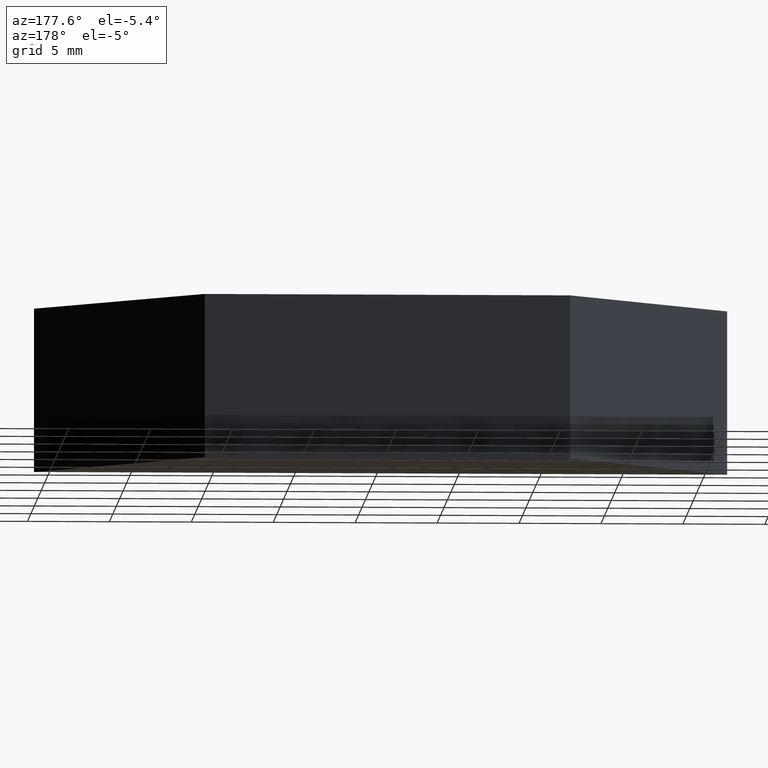
[diagram: clean part render]
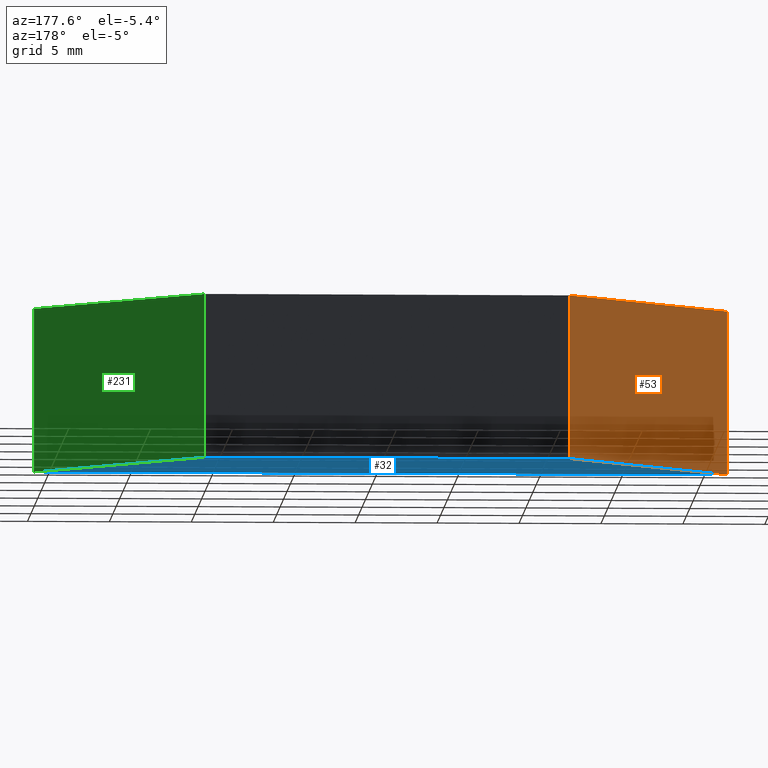
[diagram: same view with three faces highlighted in distinct colors, each labeled with its STEP entity id]
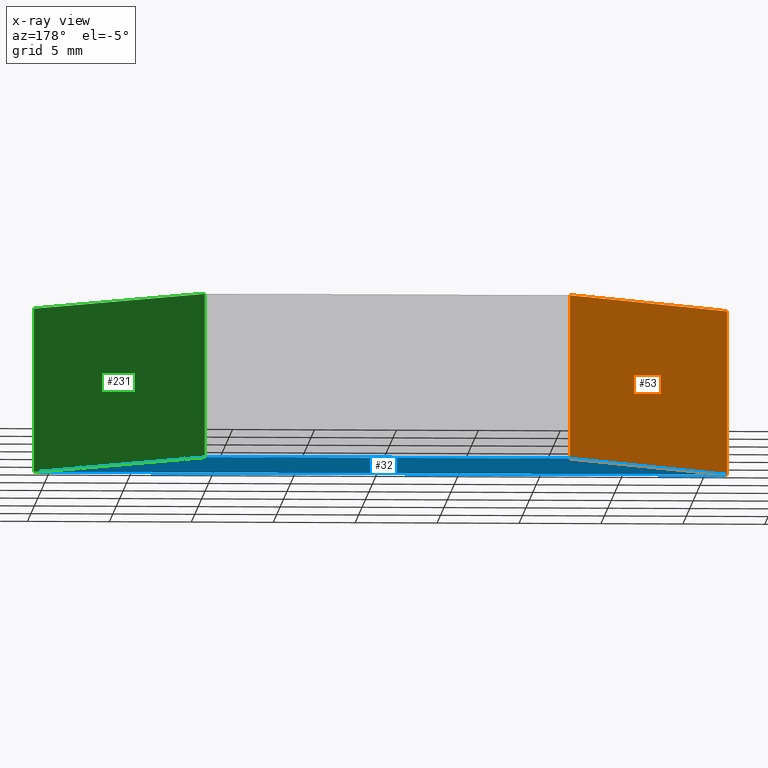
[diagram: x-ray of the same camera — body ghosted, the three highlighted faces saturated]
A machine part, auxiliary view with three faces highlighted in distinct colors.
The next image is the same camera in x-ray (body ghosted, the three faces saturated) — at least one of them is partly hidden behind the body in this view.
Their STEP definitions:

[orange] entity #53 — the highlighted planar face has unit normal (0.7071, -0.7071, 0).
#2 = CARTESIAN_POINT ( 'NONE',  ( 38.34353380175870300, 49.92210381883444400, 0.0000000000000000000 ) ) ;
#11 = VERTEX_POINT ( 'NONE', #163 ) ;
#17 = VERTEX_POINT ( 'NONE', #260 ) ;
#19 = PLANE ( 'NONE',  #215 ) ;
#20 = LINE ( 'NONE', #58, #272 ) ;
#39 = CARTESIAN_POINT ( 'NONE',  ( 38.34353380175870300, 49.92210381883444400, 10.00000000000000000 ) ) ;
#53 = ADVANCED_FACE ( 'NONE', ( #154 ), #19, .F. ) ;
#56 = ORIENTED_EDGE ( 'NONE', *, *, #73, .T. ) ;
#58 = CARTESIAN_POINT ( 'NONE',  ( 38.34353380175870300, 49.92210381883444400, 10.00000000000000000 ) ) ;
#60 = LINE ( 'NONE', #2, #294 ) ;
#61 = ORIENTED_EDGE ( 'NONE', *, *, #299, .T. ) ;
#73 = EDGE_CURVE ( 'NONE', #11, #302, #201, .T. ) ;
#80 = EDGE_CURVE ( 'NONE', #17, #99, #20, .T. ) ;
#82 = DIRECTION ( 'NONE',  ( -0.0000000000000000000, -0.0000000000000000000, -1.000000000000000000 ) ) ;
#99 = VERTEX_POINT ( 'NONE', #217 ) ;
#100 = EDGE_CURVE ( 'NONE', #11, #17, #265, .T. ) ;
#115 = ORIENTED_EDGE ( 'NONE', *, *, #100, .F. ) ;
#122 = DIRECTION ( 'NONE',  ( -0.7071067811865470200, -0.7071067811865480200, -0.0000000000000000000 ) ) ;
#128 = VECTOR ( 'NONE', #261, 1000.000000000000000 ) ;
#135 = DIRECTION ( 'NONE',  ( 0.7071067811865480200, -0.7071067811865470200, 0.0000000000000000000 ) ) ;
#146 = EDGE_LOOP ( 'NONE', ( #61, #257, #115, #56 ) ) ;
#154 = FACE_OUTER_BOUND ( 'NONE', #146, .T. ) ;
#159 = CARTESIAN_POINT ( 'NONE',  ( 48.34353380175868900, 59.92210381883445100, 10.00000000000000000 ) ) ;
#163 = CARTESIAN_POINT ( 'NONE',  ( 48.34353380175868900, 59.92210381883445100, 10.00000000000000000 ) ) ;
#185 = CARTESIAN_POINT ( 'NONE',  ( 38.34353380175870300, 49.92210381883444400, 10.00000000000000000 ) ) ;
#187 = DIRECTION ( 'NONE',  ( -0.0000000000000000000, -0.0000000000000000000, -1.000000000000000000 ) ) ;
#189 = CARTESIAN_POINT ( 'NONE',  ( 48.34353380175868900, 59.92210381883445100, 0.0000000000000000000 ) ) ;
#201 = LINE ( 'NONE', #159, #269 ) ;
#215 = AXIS2_PLACEMENT_3D ( 'NONE', #185, #135, #308 ) ;
#217 = CARTESIAN_POINT ( 'NONE',  ( 38.34353380175870300, 49.92210381883444400, 0.0000000000000000000 ) ) ;
#257 = ORIENTED_EDGE ( 'NONE', *, *, #80, .F. ) ;
#260 = CARTESIAN_POINT ( 'NONE',  ( 38.34353380175870300, 49.92210381883444400, 10.00000000000000000 ) ) ;
#261 = DIRECTION ( 'NONE',  ( -0.7071067811865470200, -0.7071067811865480200, -0.0000000000000000000 ) ) ;
#265 = LINE ( 'NONE', #39, #128 ) ;
#269 = VECTOR ( 'NONE', #187, 1000.000000000000000 ) ;
#272 = VECTOR ( 'NONE', #82, 1000.000000000000000 ) ;
#294 = VECTOR ( 'NONE', #122, 1000.000000000000000 ) ;
#299 = EDGE_CURVE ( 'NONE', #302, #99, #60, .T. ) ;
#302 = VERTEX_POINT ( 'NONE', #189 ) ;
#308 = DIRECTION ( 'NONE',  ( 0.7071067811865470200, 0.7071067811865480200, 0.0000000000000000000 ) ) ;

[blue] entity #32 — the highlighted planar face has unit normal (0, -0, 1).
#2 = CARTESIAN_POINT ( 'NONE',  ( 38.34353380175870300, 49.92210381883444400, 0.0000000000000000000 ) ) ;
#14 = DIRECTION ( 'NONE',  ( 1.000000000000000000, 0.0000000000000000000, -0.0000000000000000000 ) ) ;
#30 = FACE_OUTER_BOUND ( 'NONE', #284, .T. ) ;
#32 = ADVANCED_FACE ( 'NONE', ( #30 ), #311, .F. ) ;
#35 = VECTOR ( 'NONE', #289, 1000.000000000000000 ) ;
#36 = ORIENTED_EDGE ( 'NONE', *, *, #59, .F. ) ;
#59 = EDGE_CURVE ( 'NONE', #142, #295, #218, .T. ) ;
#60 = LINE ( 'NONE', #2, #294 ) ;
#72 = CARTESIAN_POINT ( 'NONE',  ( 38.34353380175870300, 49.92210381883444400, 0.0000000000000000000 ) ) ;
#81 = VECTOR ( 'NONE', #250, 1000.000000000000000 ) ;
#83 = CARTESIAN_POINT ( 'NONE',  ( 0.0000000000000000000, 0.0000000000000000000, 0.0000000000000000000 ) ) ;
#86 = CARTESIAN_POINT ( 'NONE',  ( 70.64353380175859300, 59.92210381883445100, 0.0000000000000000000 ) ) ;
#95 = CARTESIAN_POINT ( 'NONE',  ( 80.64353380175877800, 49.92210381883444400, 0.0000000000000000000 ) ) ;
#99 = VERTEX_POINT ( 'NONE', #217 ) ;
#102 = LINE ( 'NONE', #72, #81 ) ;
#117 = CARTESIAN_POINT ( 'NONE',  ( 80.64353380175877800, 49.92210381883444400, 0.0000000000000000000 ) ) ;
#122 = DIRECTION ( 'NONE',  ( -0.7071067811865470200, -0.7071067811865480200, -0.0000000000000000000 ) ) ;
#142 = VERTEX_POINT ( 'NONE', #95 ) ;
#150 = VECTOR ( 'NONE', #161, 1000.000000000000000 ) ;
#153 = LINE ( 'NONE', #170, #35 ) ;
#161 = DIRECTION ( 'NONE',  ( -0.7071067811865536800, 0.7071067811865414700, 0.0000000000000000000 ) ) ;
#162 = ORIENTED_EDGE ( 'NONE', *, *, #281, .F. ) ;
#170 = CARTESIAN_POINT ( 'NONE',  ( 48.34353380175868900, 59.92210381883445100, 0.0000000000000000000 ) ) ;
#184 = ORIENTED_EDGE ( 'NONE', *, *, #299, .F. ) ;
#189 = CARTESIAN_POINT ( 'NONE',  ( 48.34353380175868900, 59.92210381883445100, 0.0000000000000000000 ) ) ;
#197 = EDGE_CURVE ( 'NONE', #99, #142, #102, .T. ) ;
#217 = CARTESIAN_POINT ( 'NONE',  ( 38.34353380175870300, 49.92210381883444400, 0.0000000000000000000 ) ) ;
#218 = LINE ( 'NONE', #117, #150 ) ;
#234 = ORIENTED_EDGE ( 'NONE', *, *, #197, .F. ) ;
#250 = DIRECTION ( 'NONE',  ( 1.000000000000000000, 0.0000000000000000000, 0.0000000000000000000 ) ) ;
#252 = AXIS2_PLACEMENT_3D ( 'NONE', #83, #307, #14 ) ;
#281 = EDGE_CURVE ( 'NONE', #295, #302, #153, .T. ) ;
#284 = EDGE_LOOP ( 'NONE', ( #184, #162, #36, #234 ) ) ;
#289 = DIRECTION ( 'NONE',  ( -1.000000000000000000, -0.0000000000000000000, -0.0000000000000000000 ) ) ;
#294 = VECTOR ( 'NONE', #122, 1000.000000000000000 ) ;
#295 = VERTEX_POINT ( 'NONE', #86 ) ;
#299 = EDGE_CURVE ( 'NONE', #302, #99, #60, .T. ) ;
#302 = VERTEX_POINT ( 'NONE', #189 ) ;
#307 = DIRECTION ( 'NONE',  ( 0.0000000000000000000, -0.0000000000000000000, 1.000000000000000000 ) ) ;
#311 = PLANE ( 'NONE',  #252 ) ;

[green] entity #231 — the highlighted planar face has unit normal (-0.7071, -0.7071, 0).
#5 = EDGE_LOOP ( 'NONE', ( #205, #259, #79, #50 ) ) ;
#16 = CARTESIAN_POINT ( 'NONE',  ( 70.64353380175859300, 59.92210381883445100, 10.00000000000000000 ) ) ;
#18 = DIRECTION ( 'NONE',  ( -0.0000000000000000000, -0.0000000000000000000, -1.000000000000000000 ) ) ;
#27 = DIRECTION ( 'NONE',  ( -0.7071067811865414700, -0.7071067811865536800, 0.0000000000000000000 ) ) ;
#48 = CARTESIAN_POINT ( 'NONE',  ( 80.64353380175877800, 49.92210381883444400, 10.00000000000000000 ) ) ;
#50 = ORIENTED_EDGE ( 'NONE', *, *, #238, .T. ) ;
#52 = VERTEX_POINT ( 'NONE', #16 ) ;
#59 = EDGE_CURVE ( 'NONE', #142, #295, #218, .T. ) ;
#67 = CARTESIAN_POINT ( 'NONE',  ( 80.64353380175877800, 49.92210381883444400, 10.00000000000000000 ) ) ;
#74 = VECTOR ( 'NONE', #18, 1000.000000000000000 ) ;
#78 = LINE ( 'NONE', #116, #173 ) ;
#79 = ORIENTED_EDGE ( 'NONE', *, *, #267, .F. ) ;
#84 = EDGE_CURVE ( 'NONE', #52, #295, #208, .T. ) ;
#86 = CARTESIAN_POINT ( 'NONE',  ( 70.64353380175859300, 59.92210381883445100, 0.0000000000000000000 ) ) ;
#95 = CARTESIAN_POINT ( 'NONE',  ( 80.64353380175877800, 49.92210381883444400, 0.0000000000000000000 ) ) ;
#98 = VECTOR ( 'NONE', #144, 1000.000000000000000 ) ;
#116 = CARTESIAN_POINT ( 'NONE',  ( 80.64353380175877800, 49.92210381883444400, 10.00000000000000000 ) ) ;
#117 = CARTESIAN_POINT ( 'NONE',  ( 80.64353380175877800, 49.92210381883444400, 0.0000000000000000000 ) ) ;
#132 = VERTEX_POINT ( 'NONE', #48 ) ;
#142 = VERTEX_POINT ( 'NONE', #95 ) ;
#144 = DIRECTION ( 'NONE',  ( -0.0000000000000000000, -0.0000000000000000000, -1.000000000000000000 ) ) ;
#150 = VECTOR ( 'NONE', #161, 1000.000000000000000 ) ;
#161 = DIRECTION ( 'NONE',  ( -0.7071067811865536800, 0.7071067811865414700, 0.0000000000000000000 ) ) ;
#172 = PLANE ( 'NONE',  #230 ) ;
#173 = VECTOR ( 'NONE', #191, 1000.000000000000000 ) ;
#191 = DIRECTION ( 'NONE',  ( -0.7071067811865536800, 0.7071067811865414700, 0.0000000000000000000 ) ) ;
#205 = ORIENTED_EDGE ( 'NONE', *, *, #59, .T. ) ;
#208 = LINE ( 'NONE', #213, #74 ) ;
#210 = LINE ( 'NONE', #67, #98 ) ;
#213 = CARTESIAN_POINT ( 'NONE',  ( 70.64353380175859300, 59.92210381883445100, 10.00000000000000000 ) ) ;
#218 = LINE ( 'NONE', #117, #150 ) ;
#228 = DIRECTION ( 'NONE',  ( 0.7071067811865536800, -0.7071067811865414700, 0.0000000000000000000 ) ) ;
#230 = AXIS2_PLACEMENT_3D ( 'NONE', #293, #27, #228 ) ;
#231 = ADVANCED_FACE ( 'NONE', ( #237 ), #172, .F. ) ;
#237 = FACE_OUTER_BOUND ( 'NONE', #5, .T. ) ;
#238 = EDGE_CURVE ( 'NONE', #132, #142, #210, .T. ) ;
#259 = ORIENTED_EDGE ( 'NONE', *, *, #84, .F. ) ;
#267 = EDGE_CURVE ( 'NONE', #132, #52, #78, .T. ) ;
#293 = CARTESIAN_POINT ( 'NONE',  ( 80.64353380175877800, 49.92210381883444400, 10.00000000000000000 ) ) ;
#295 = VERTEX_POINT ( 'NONE', #86 ) ;